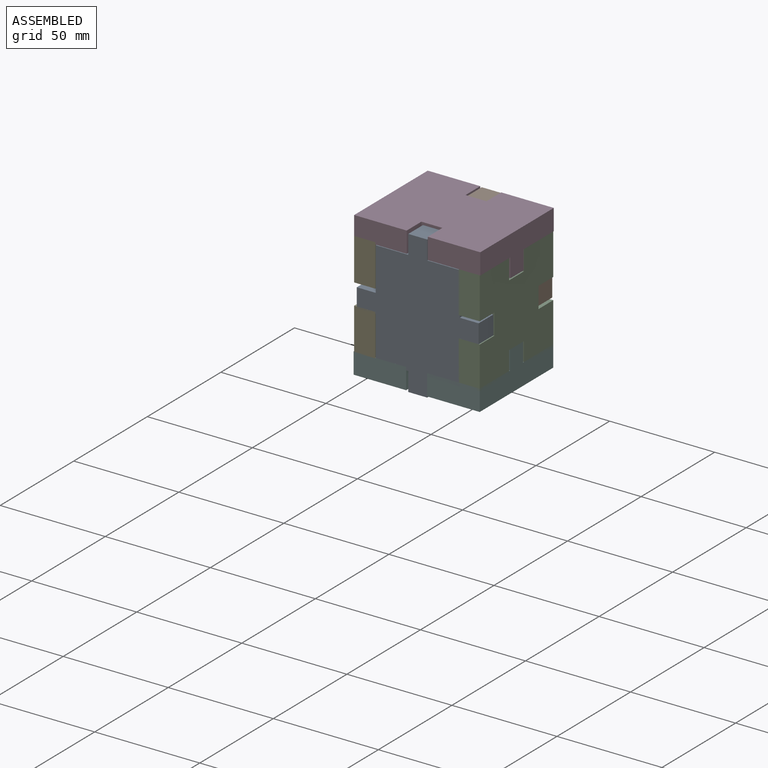
[diagram: assembled view]
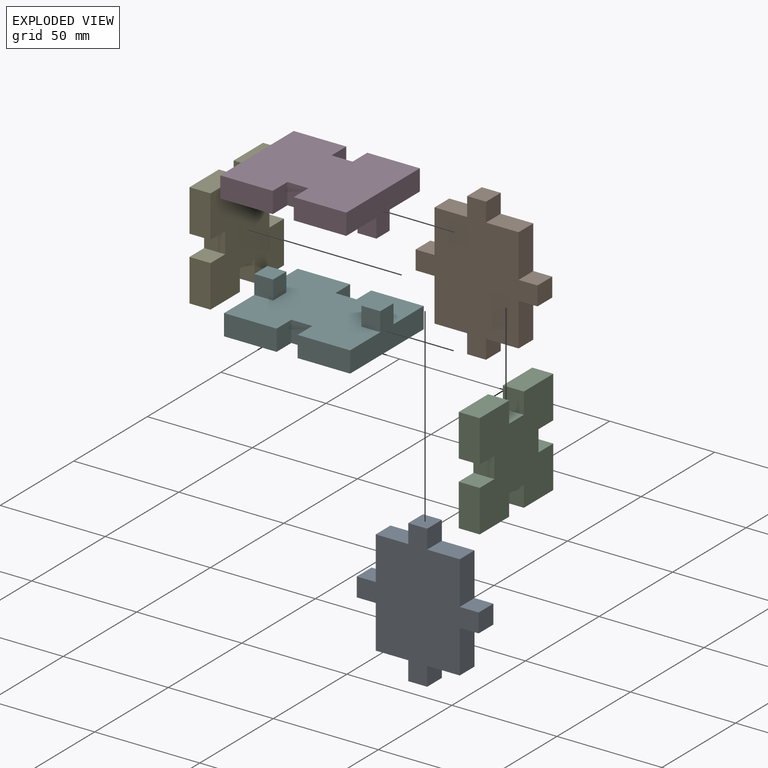
[diagram: exploded view]
GUIDED TOUR — MATED ASSEMBLY (Onshape document 5909404778b4407dcc8a168a, AutoMate assembly 5909404778b4407dcc8a168a_50c21cffb9663e688148c980_401f886c6cd79d30adbaacdc_default)

This assembly has 6 components, labeled P0..P5 below (a component is one placed occurrence of a part; the same part can appear more than once), held together by 3 mates. A mate is a constraint between two components; its type names the relative motion it leaves free:
  FASTENED — locks the two components together rigidly (no relative motion).
Axis/direction vectors are unit vectors and 'through' points are millimeter coordinates, both in the assembly's world frame.

MATES
  1. FASTENED "Fastened 2": P1 <-> P2, direction (0.000, 0.000, 1.000) through (4.25, 100.70, -35.21) mm
  2. FASTENED "Fastened 9": P1 <-> P5, direction (1.000, 0.000, 0.000) through (-15.75, 100.70, -69.21) mm
  3. FASTENED "Fastened 3": P0 <-> P2, direction (0.000, 0.000, -1.000) through (4.25, 60.70, -45.21) mm

ASSEMBLY ORDER
  1. P3 — the base component [order heuristic]
  2. P2 — core [order heuristic]
  3. P4 — core [order heuristic]
  4. P5 — core [order heuristic]
  5. P0 [order verified]
  6. P1 [order verified]
Order-tag legend:
  [order verified] — this step's position reverses a verified removal order: the component was checked to insert without passing through the ones already placed.
  [order heuristic] — the first 4 components form the assembly's core: parts whose collision-free extraction could not be verified, listed in mate-graph order.

Of the 6 components, 6 carry the full construction recipe — the FeatureScript program that regenerates the part's solid from scratch; the rest are supplied as boundary geometry only.
Each toured component is shown spotlighted twice — in the assembled view, then in the exploded view, where a leader line traces a displaced component back to its assembled socket (saturated green if recipe-attached, orange if geometry-only; every other component desaturated gray) — followed by its recipe or geometry summary and the mates that hold it.
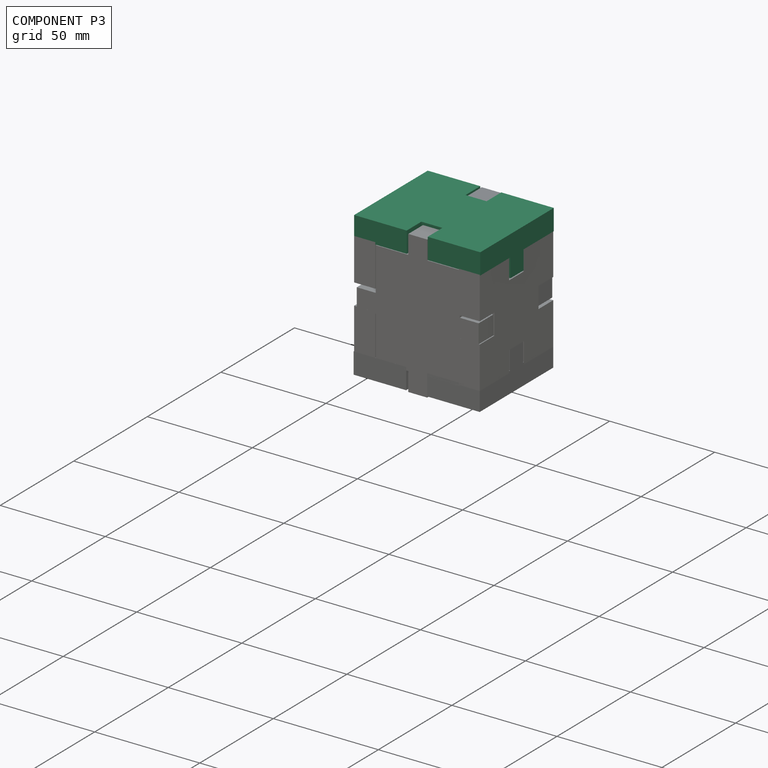
[diagram: component P3 — assembled]
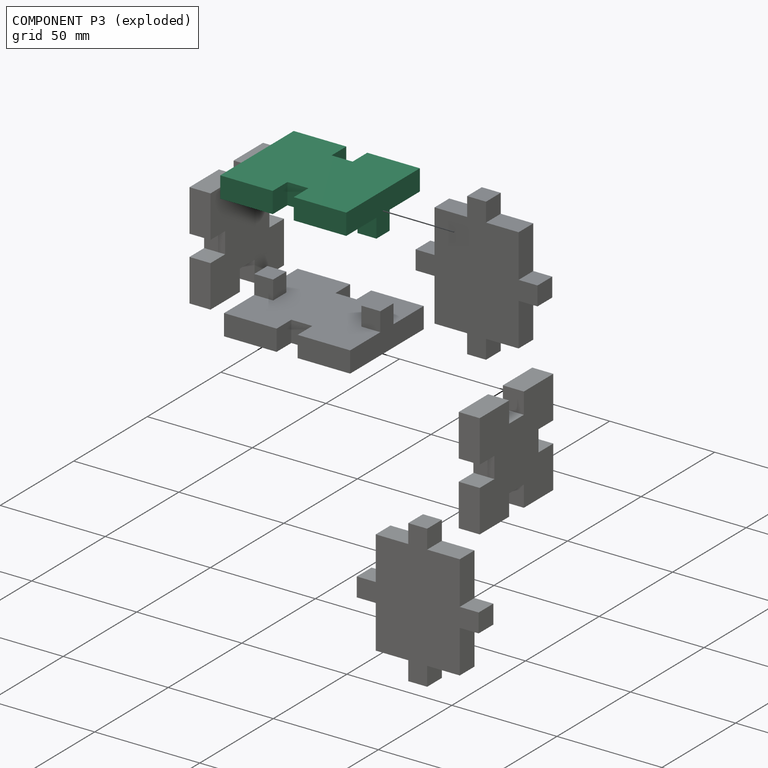
[diagram: component P3 — exploded]
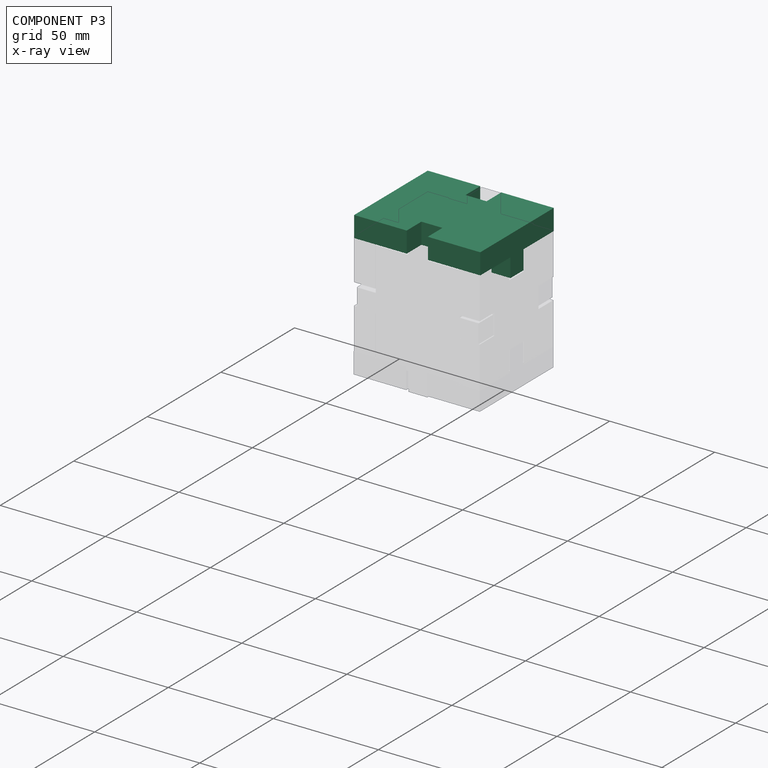
[diagram: component P3 — x-ray view]
COMPONENT P3 — recipe-attached (CADFS 00135327, mesh-verified: the recipe's output STEP matches this component's geometry to below the mesh-comparison resolution (tessellation chordal tolerance ~0.121 mm)).
Held by: no mates (free).
Construction recipe (FeatureScript — the CAD program that rebuilds this solid; sketch coordinates are in the units given by the * unit suffixes, e.g. mm):

FeatureScript 1511;
import(path : "onshape/std/geometry.fs", version : "1511.0");
import(path : "onshape/std/common.fs", version : "1511.0");
const mm = millimeter;
const VERTEX = EntityType.VERTEX;
const EDGE = EntityType.EDGE;
const FACE = EntityType.FACE;
const BODY = EntityType.BODY;
function v(x, y){return vector(x, y);}
function OD(order){return orderDisambiguation(order);}
function OSD(set){return originalSetDisambiguation(set);}
function TD(topology){return topologyDisambiguation(topology);}
function TDD(query){return trueDependencyDisambiguation(query);}
function sQuery(a, b, c) {return sketchEntityQuery(a, b, c);}

annotation { "Feature Type Name" : "Feature", "Feature Type Description" : "" }
export const myFeature = defineFeature(function(context is Context, id is Id, definition is map)
    precondition{}
    {
        {
            var Q0;
            Q0=qCreatedBy(makeId("Top.planeOp"),FACE);
            var sketch = newSketch(context, id + "F0", { "sketchPlane" : qUnion([Q0])});
            skLineSegment(sketch, "E0.bottom", {"start": v(80.72, 58.96) * mm, "end": v(55.72, 58.96) * mm});
            skLineSegment(sketch, "E0.top", {"start": v(80.72, 8.96) * mm, "end": v(55.72, 8.96) * mm});
            skLineSegment(sketch, "E0.left", {"start": v(80.72, 58.96) * mm, "end": v(80.72, 8.96) * mm});
            skLineSegment(sketch, "E0.right", {"start": v(20.72, 58.96) * mm, "end": v(20.72, 8.96) * mm});
            skLineSegment(sketch, "E1.top", {"start": v(55.72, 48.96) * mm, "end": v(45.72, 48.96) * mm});
            skLineSegment(sketch, "E1.left", {"start": v(55.72, 58.96) * mm, "end": v(55.72, 48.96) * mm});
            skLineSegment(sketch, "E1.right", {"start": v(45.72, 58.96) * mm, "end": v(45.72, 48.96) * mm});
            skLineSegment(sketch, "E2.top", {"start": v(55.72, 18.96) * mm, "end": v(45.72, 18.96) * mm});
            skLineSegment(sketch, "E2.left", {"start": v(55.72, 8.96) * mm, "end": v(55.72, 18.96) * mm});
            skLineSegment(sketch, "E2.right", {"start": v(45.72, 8.96) * mm, "end": v(45.72, 18.96) * mm});
            skLineSegment(sketch, "E3.trimOffspring", {"start": v(45.72, 8.96) * mm, "end": v(20.72, 8.96) * mm});
            skLineSegment(sketch, "E4.trimOffspring", {"start": v(45.72, 58.96) * mm, "end": v(20.72, 58.96) * mm});
            skSolve(sketch);
        }
        {
            var Q0;
            Q0=makeQuery(id+"F0.imprint","IMPRINT",FACE,{"disambiguationData":[TD([[makeQuery(id+"F0.imprint","IMPRINT",EDGE,{"derivedFrom":sQuery(id+"F0.wireOp",EDGE,"E0.bottom")}),1.0]])]});
            extrude(context, id + "F1", {"entities" : qUnion([Q0]), "depth" : 10 * mm});
        }
        {
            var Q0;
            Q0=makeQuery(id+"F0.imprint","IMPRINT",FACE,{"disambiguationData":[TD([[makeQuery(id+"F0.imprint","IMPRINT",EDGE,{"derivedFrom":sQuery(id+"F0.wireOp",EDGE,"E0.bottom")}),1.0]])]});
            var sketch = newSketch(context, id + "F2", { "sketchPlane" : qUnion([Q0])});
            skLineSegment(sketch, "E5.right", {"start": v(29.72, 38.46) * mm, "end": v(29.72, 29.46) * mm});
            skLineSegment(sketch, "E6", {"start": v(29.72, 29.46) * mm, "end": v(20.72, 29.46) * mm});
            skLineSegment(sketch, "E7", {"start": v(29.72, 38.46) * mm, "end": v(20.72, 38.46) * mm});
            skLineSegment(sketch, "E8", {"start": v(50.72, 18.96) * mm, "end": v(50.72, 48.96) * mm, "construction": true});
            skLineSegment(sketch, "E9.MirrorCS", {"start": v(71.72, 29.46) * mm, "end": v(80.72, 29.46) * mm});
            skLineSegment(sketch, "E10.MirrorCS", {"start": v(71.72, 38.46) * mm, "end": v(80.72, 38.46) * mm});
            skLineSegment(sketch, "E11.MirrorCS", {"start": v(71.72, 38.46) * mm, "end": v(71.72, 29.46) * mm});
            skPoint(sketch, "E12.orphan", {"position": v(50.72, 55.6) * mm});
            skLineSegment(sketch, "E13.0", {"start": v(55.72, 48.96) * mm, "end": v(45.72, 48.96) * mm});
            skPoint(sketch, "E14.orphan", {"position": v(50.72, 37.28) * mm});
            skLineSegment(sketch, "E15.0", {"start": v(80.72, 58.96) * mm, "end": v(80.72, 8.96) * mm});
            skLineSegment(sketch, "E16.0", {"start": v(20.72, 58.96) * mm, "end": v(20.72, 8.96) * mm});
            skSolve(sketch);
        }
        {
            var Q0;
            Q0 = qSketchRegion(id + "F2", true);
            extrude(context, id + "F3", {"entities" : qUnion([Q0]), "operationType" : NewBodyOperationType.ADD, "oppositeDirection" : true, "depth" : 9 * mm});
        }
    });
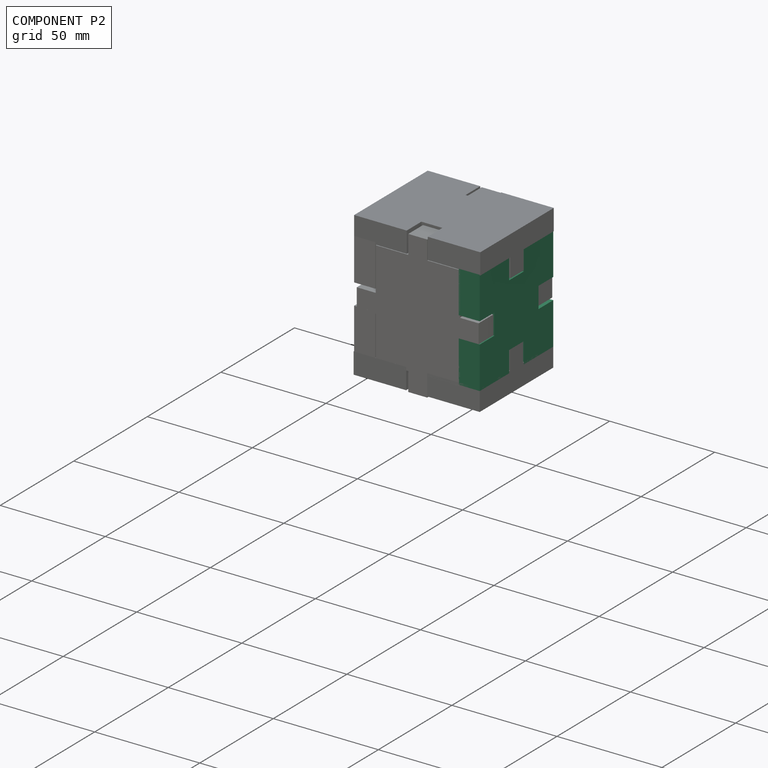
[diagram: component P2 — assembled]
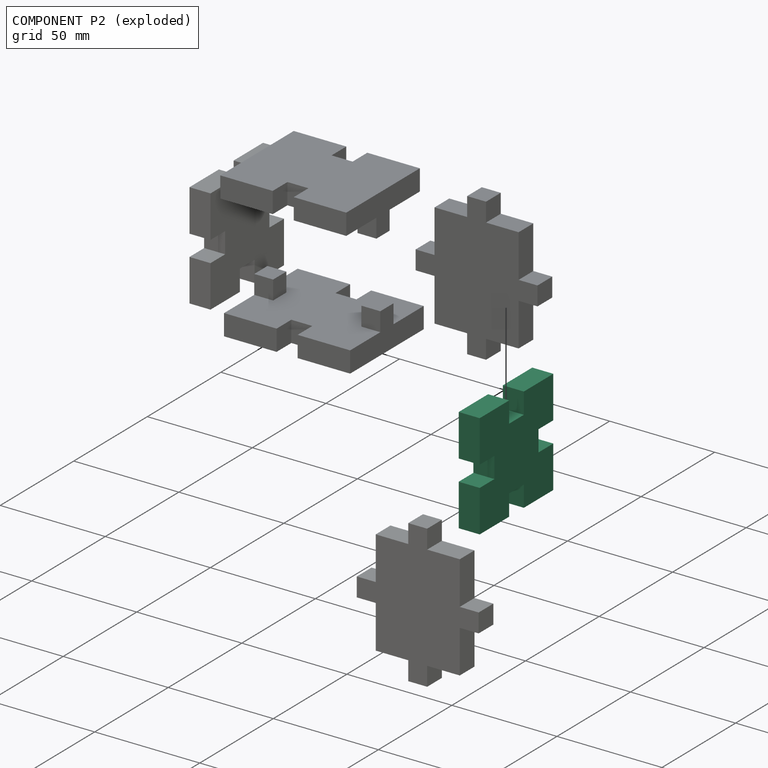
[diagram: component P2 — exploded]
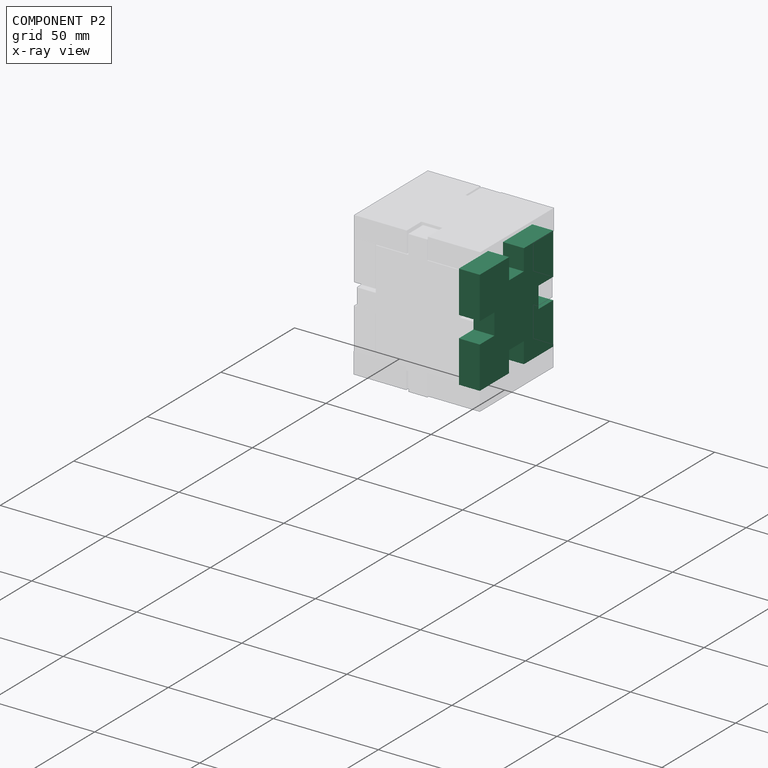
[diagram: component P2 — x-ray view]
COMPONENT P2 — recipe-attached (CADFS 00135326, mesh-verified: the recipe's output STEP matches this component's geometry to below the mesh-comparison resolution (tessellation chordal tolerance ~0.107 mm)).
Held by: FASTENED mate "Fastened 2" to P1; FASTENED mate "Fastened 3" to P0.
Construction recipe (FeatureScript — the CAD program that rebuilds this solid; sketch coordinates are in the units given by the * unit suffixes, e.g. mm):

FeatureScript 1511;
import(path : "onshape/std/geometry.fs", version : "1511.0");
import(path : "onshape/std/common.fs", version : "1511.0");
const mm = millimeter;
const VERTEX = EntityType.VERTEX;
const EDGE = EntityType.EDGE;
const FACE = EntityType.FACE;
const BODY = EntityType.BODY;
function v(x, y){return vector(x, y);}
function OD(order){return orderDisambiguation(order);}
function OSD(set){return originalSetDisambiguation(set);}
function TD(topology){return topologyDisambiguation(topology);}
function TDD(query){return trueDependencyDisambiguation(query);}
function sQuery(a, b, c) {return sketchEntityQuery(a, b, c);}

annotation { "Feature Type Name" : "Feature", "Feature Type Description" : "" }
export const myFeature = defineFeature(function(context is Context, id is Id, definition is map)
    precondition{}
    {
        {
            var Q0;
            Q0=qCreatedBy(makeId("Right.planeOp"),FACE);
            var sketch = newSketch(context, id + "F0", { "sketchPlane" : qUnion([Q0])});
            skLineSegment(sketch, "E0.bottom", {"start": v(-50, 50) * mm, "end": v(0, 50) * mm});
            skLineSegment(sketch, "E0.top", {"start": v(-50, 0) * mm, "end": v(0, 0) * mm});
            skLineSegment(sketch, "E0.left", {"start": v(-50, 50) * mm, "end": v(-50, 0) * mm});
            skLineSegment(sketch, "E0.right", {"start": v(0, 50) * mm, "end": v(0, 0) * mm});
            skLineSegment(sketch, "E1.bottom", {"start": v(-30, 50) * mm, "end": v(-20, 50) * mm});
            skLineSegment(sketch, "E1.top", {"start": v(-30, 40) * mm, "end": v(-20, 40) * mm});
            skLineSegment(sketch, "E1.left", {"start": v(-30, 50) * mm, "end": v(-30, 40) * mm});
            skLineSegment(sketch, "E1.right", {"start": v(-20, 50) * mm, "end": v(-20, 40) * mm});
            skLineSegment(sketch, "E2.bottom", {"start": v(0, 30) * mm, "end": v(-10, 30) * mm});
            skLineSegment(sketch, "E2.top", {"start": v(0, 20) * mm, "end": v(-10, 20) * mm});
            skLineSegment(sketch, "E2.left", {"start": v(0, 30) * mm, "end": v(0, 20) * mm});
            skLineSegment(sketch, "E2.right", {"start": v(-10, 30) * mm, "end": v(-10, 20) * mm});
            skLineSegment(sketch, "E3.bottom", {"start": v(-30, 0) * mm, "end": v(-20, 0) * mm});
            skLineSegment(sketch, "E3.top", {"start": v(-30, 10) * mm, "end": v(-20, 10) * mm});
            skLineSegment(sketch, "E3.left", {"start": v(-30, 0) * mm, "end": v(-30, 10) * mm});
            skLineSegment(sketch, "E3.right", {"start": v(-20, 0) * mm, "end": v(-20, 10) * mm});
            skLineSegment(sketch, "E4.bottom", {"start": v(-50, 30) * mm, "end": v(-40, 30) * mm});
            skLineSegment(sketch, "E4.top", {"start": v(-50, 20) * mm, "end": v(-40, 20) * mm});
            skLineSegment(sketch, "E4.left", {"start": v(-50, 30) * mm, "end": v(-50, 20) * mm});
            skLineSegment(sketch, "E4.right", {"start": v(-40, 30) * mm, "end": v(-40, 20) * mm});
            skSolve(sketch);
        }
        {
            var Q0;
            Q0=makeQuery(id+"F0.imprint","IMPRINT",FACE,{"disambiguationData":[TD([[makeQuery(id+"F0.imprint","IMPRINT",EDGE,{"derivedFrom":sQuery(id+"F0.wireOp",EDGE,"E1.top")}),-1.0]])]});
            extrude(context, id + "F1", {"entities" : qUnion([Q0]), "depth" : 10 * mm});
        }
    });
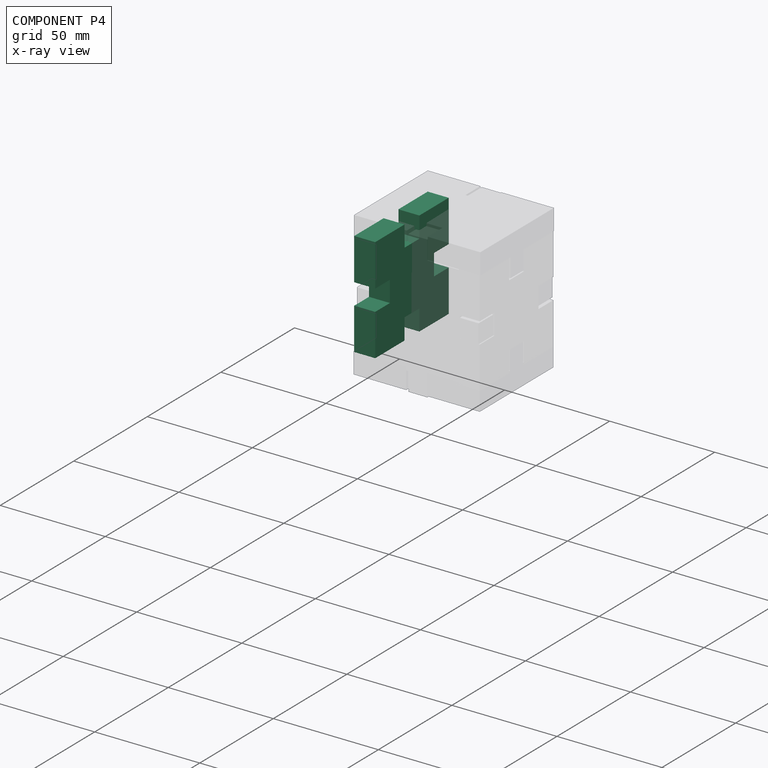
[diagram: component P4 — x-ray view]
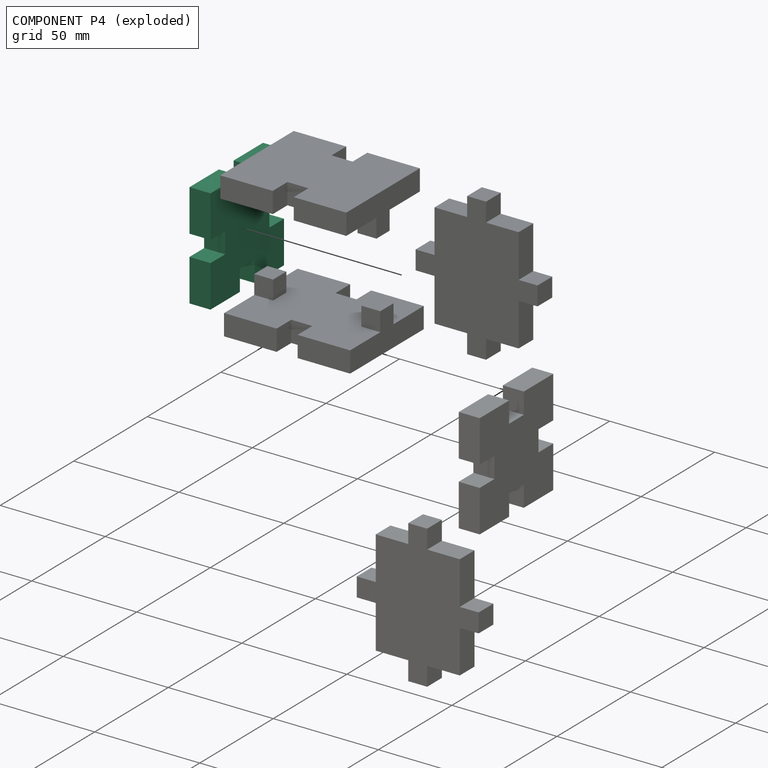
[diagram: component P4 — exploded]
COMPONENT P4 — same part as P2 (CADFS 00135326); its construction recipe is shown at P2.
Held by: no mates (free).
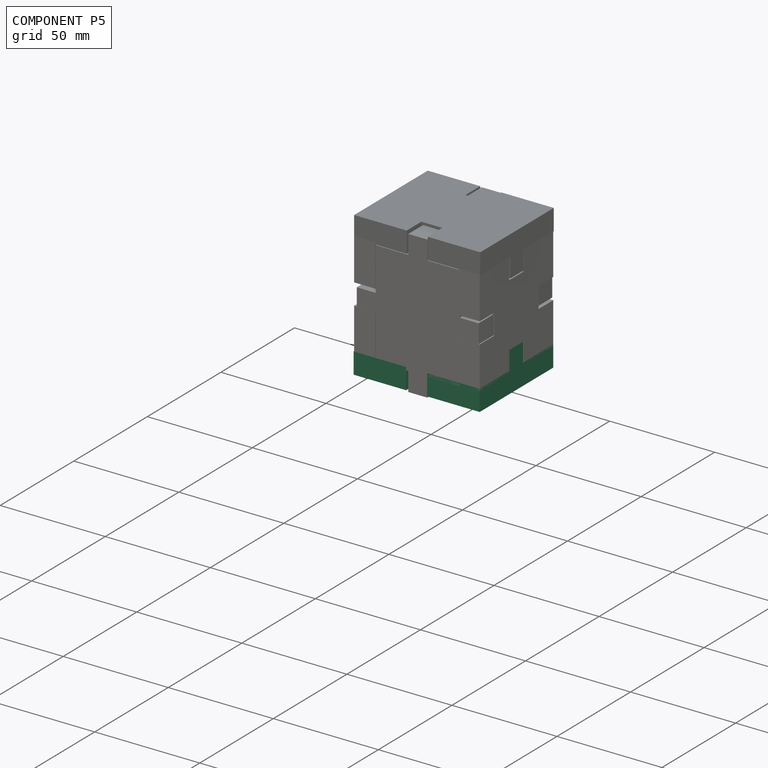
[diagram: component P5 — assembled]
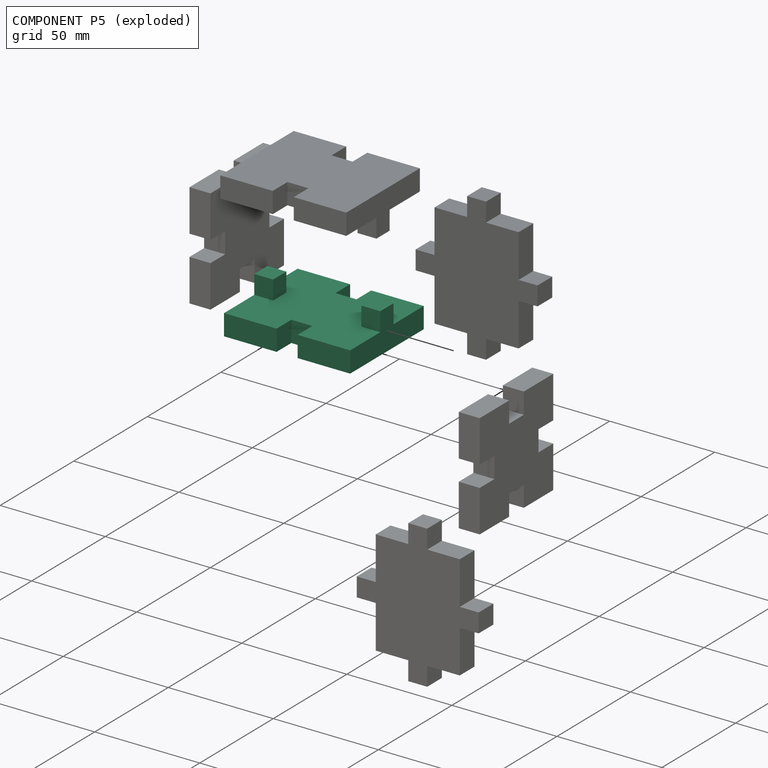
[diagram: component P5 — exploded]
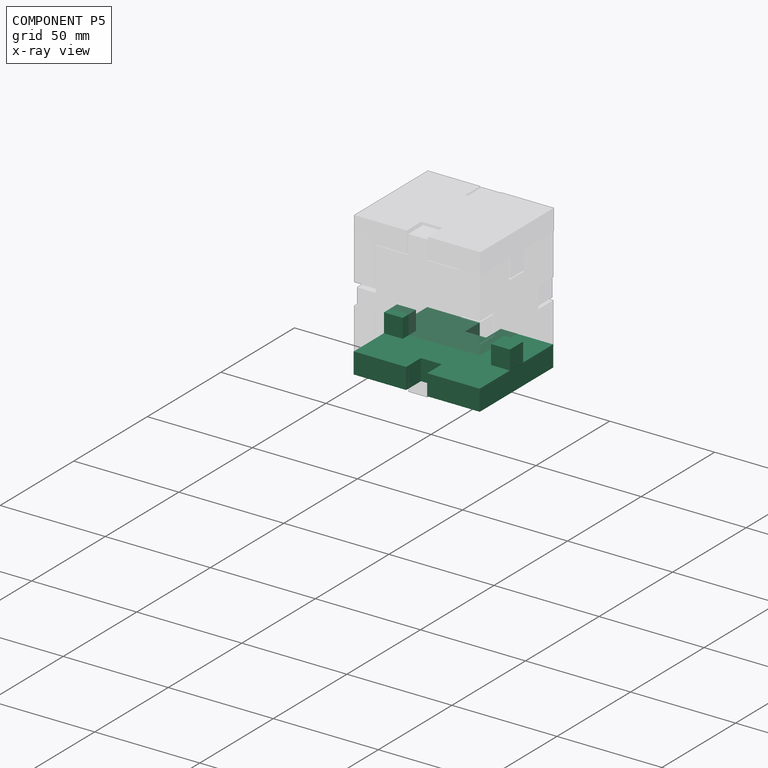
[diagram: component P5 — x-ray view]
COMPONENT P5 — same part as P3 (CADFS 00135327); its construction recipe is shown at P3.
Held by: FASTENED mate "Fastened 9" to P1.
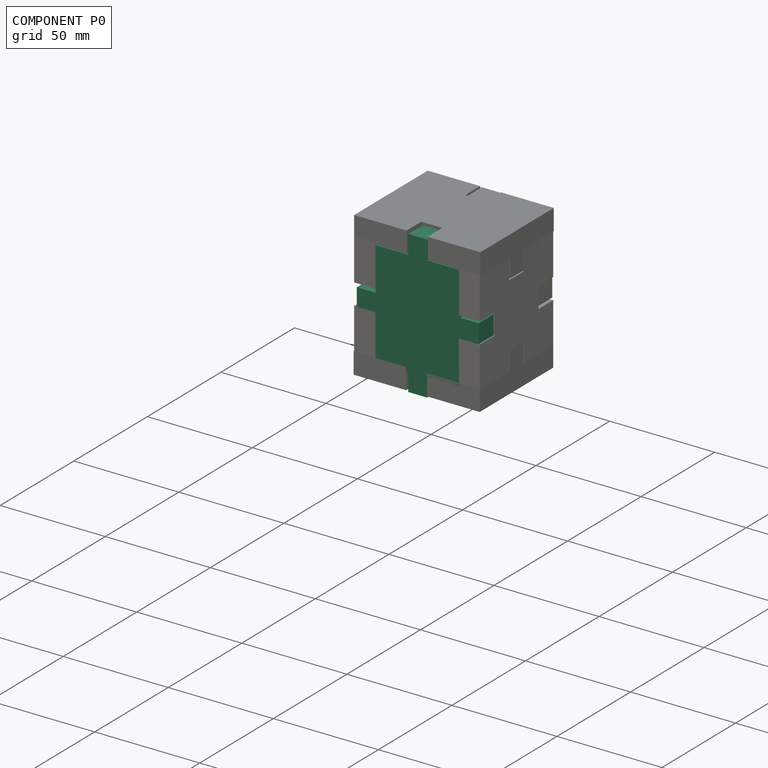
[diagram: component P0 — assembled]
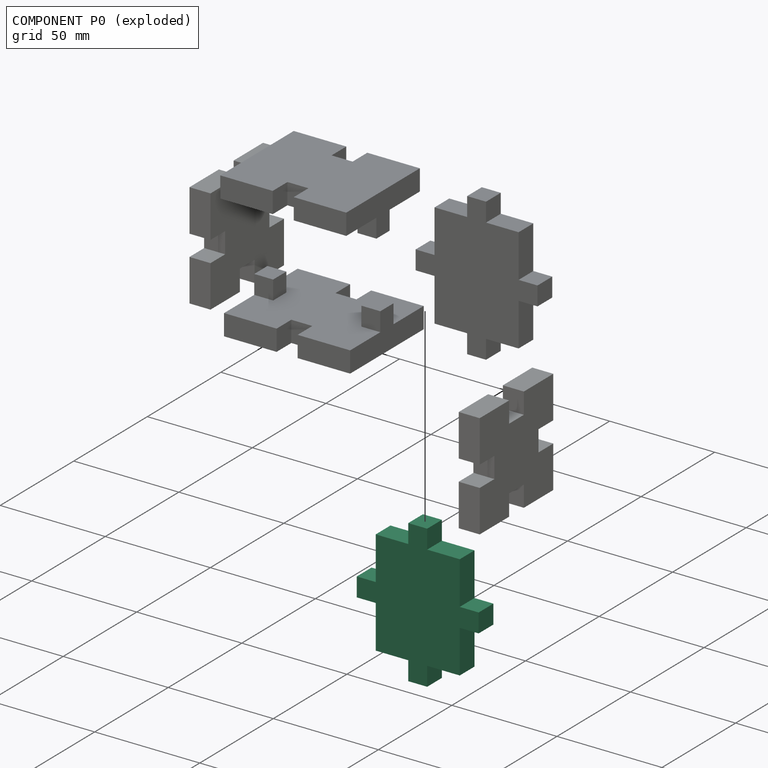
[diagram: component P0 — exploded]
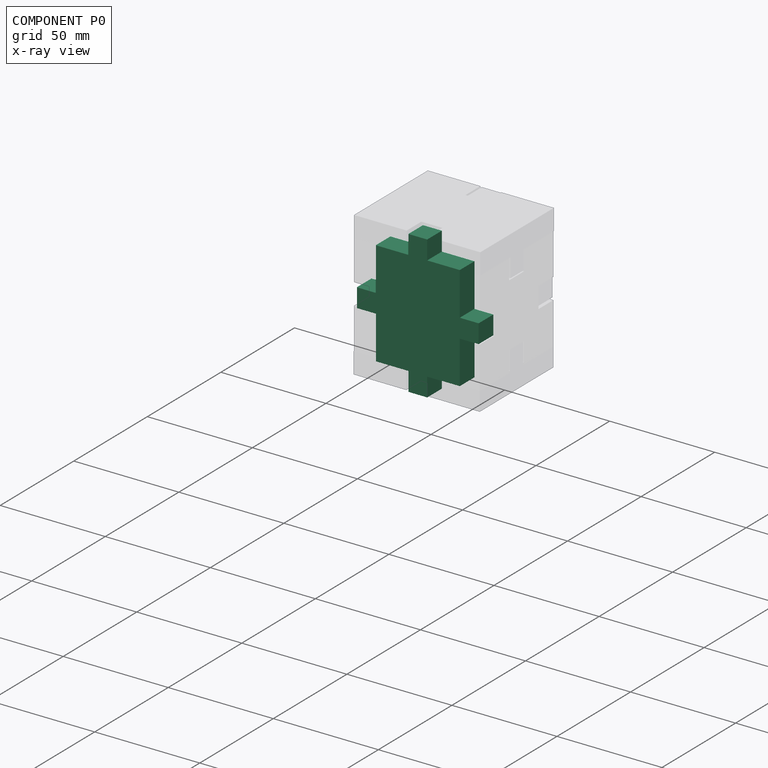
[diagram: component P0 — x-ray view]
COMPONENT P0 — recipe-attached (CADFS 00135325, mesh-verified: the recipe's output STEP matches this component's geometry to below the mesh-comparison resolution (tessellation chordal tolerance ~0.135 mm)).
Held by: FASTENED mate "Fastened 3" to P2.
Construction recipe (FeatureScript — the CAD program that rebuilds this solid; sketch coordinates are in the units given by the * unit suffixes, e.g. mm):

FeatureScript 1511;
import(path : "onshape/std/geometry.fs", version : "1511.0");
import(path : "onshape/std/common.fs", version : "1511.0");
const mm = millimeter;
const VERTEX = EntityType.VERTEX;
const EDGE = EntityType.EDGE;
const FACE = EntityType.FACE;
const BODY = EntityType.BODY;
function v(x, y){return vector(x, y);}
function OD(order){return orderDisambiguation(order);}
function OSD(set){return originalSetDisambiguation(set);}
function TD(topology){return topologyDisambiguation(topology);}
function TDD(query){return trueDependencyDisambiguation(query);}
function sQuery(a, b, c) {return sketchEntityQuery(a, b, c);}

annotation { "Feature Type Name" : "Feature", "Feature Type Description" : "" }
export const myFeature = defineFeature(function(context is Context, id is Id, definition is map)
    precondition{}
    {
        {
            var Q0;
            Q0=qCreatedBy(makeId("Front.planeOp"),FACE);
            var sketch = newSketch(context, id + "F0", { "sketchPlane" : qUnion([Q0])});
            skLineSegment(sketch, "E0.bottom", {"start": v(-36.69, 50) * mm, "end": v(3.31, 50) * mm});
            skLineSegment(sketch, "E0.top", {"start": v(-36.69, 0) * mm, "end": v(3.31, 0) * mm});
            skLineSegment(sketch, "E0.left", {"start": v(-36.69, 50) * mm, "end": v(-36.69, 0) * mm});
            skLineSegment(sketch, "E0.right", {"start": v(3.31, 50) * mm, "end": v(3.31, 0) * mm});
            skLineSegment(sketch, "E1.left", {"start": v(-36.69, 50) * mm, "end": v(-36.69, 50) * mm});
            skLineSegment(sketch, "E1.right", {"start": v(3.31, 50) * mm, "end": v(3.31, 50) * mm});
            skLineSegment(sketch, "E2.bottom", {"start": v(3.31, 50) * mm, "end": v(-36.69, 50) * mm});
            skLineSegment(sketch, "E2.top", {"start": v(3.31, 50) * mm, "end": v(-36.69, 50) * mm});
            skLineSegment(sketch, "E3.bottom", {"start": v(3.31, 29.5) * mm, "end": v(12.31, 29.5) * mm});
            skLineSegment(sketch, "E3.top", {"start": v(3.31, 20.5) * mm, "end": v(12.31, 20.5) * mm});
            skLineSegment(sketch, "E3.left", {"start": v(3.31, 29.5) * mm, "end": v(3.31, 20.5) * mm});
            skLineSegment(sketch, "E3.right", {"start": v(12.31, 29.5) * mm, "end": v(12.31, 20.5) * mm});
            skLineSegment(sketch, "E4.bottom", {"start": v(-21.19, 0) * mm, "end": v(-12.19, 0) * mm});
            skLineSegment(sketch, "E4.top", {"start": v(-21.19, -9) * mm, "end": v(-12.19, -9) * mm});
            skLineSegment(sketch, "E4.left", {"start": v(-21.19, 0) * mm, "end": v(-21.19, -9) * mm});
            skLineSegment(sketch, "E4.right", {"start": v(-12.19, 0) * mm, "end": v(-12.19, -9) * mm});
            skLineSegment(sketch, "E5", {"start": v(-16.69, 50) * mm, "end": v(-16.69, -39.94) * mm, "construction": true});
            skLineSegment(sketch, "E6.MirrorCS", {"start": v(-36.69, 29.5) * mm, "end": v(-45.69, 29.5) * mm});
            skLineSegment(sketch, "E7.MirrorCS", {"start": v(-45.69, 29.5) * mm, "end": v(-45.69, 20.5) * mm});
            skLineSegment(sketch, "E8.MirrorCS", {"start": v(-36.69, 20.5) * mm, "end": v(-45.69, 20.5) * mm});
            skLineSegment(sketch, "E9", {"start": v(-36.69, 25) * mm, "end": v(-1.13, 25) * mm, "construction": true});
            skPoint(sketch, "E9.endSnap0", {"position": v(3.31, 25) * mm});
            skLineSegment(sketch, "E10.MirrorCS", {"start": v(-21.19, 50) * mm, "end": v(-21.19, 59) * mm});
            skLineSegment(sketch, "E11.MirrorCS", {"start": v(-21.19, 59) * mm, "end": v(-12.19, 59) * mm});
            skLineSegment(sketch, "E12.MirrorCS", {"start": v(-12.19, 50) * mm, "end": v(-12.19, 59) * mm});
            skSolve(sketch);
        }
        {
            var Q0;
            Q0 = qSketchRegion(id + "F0", true);
            extrude(context, id + "F1", {"entities" : qUnion([Q0]), "depth" : 10 * mm});
        }
    });
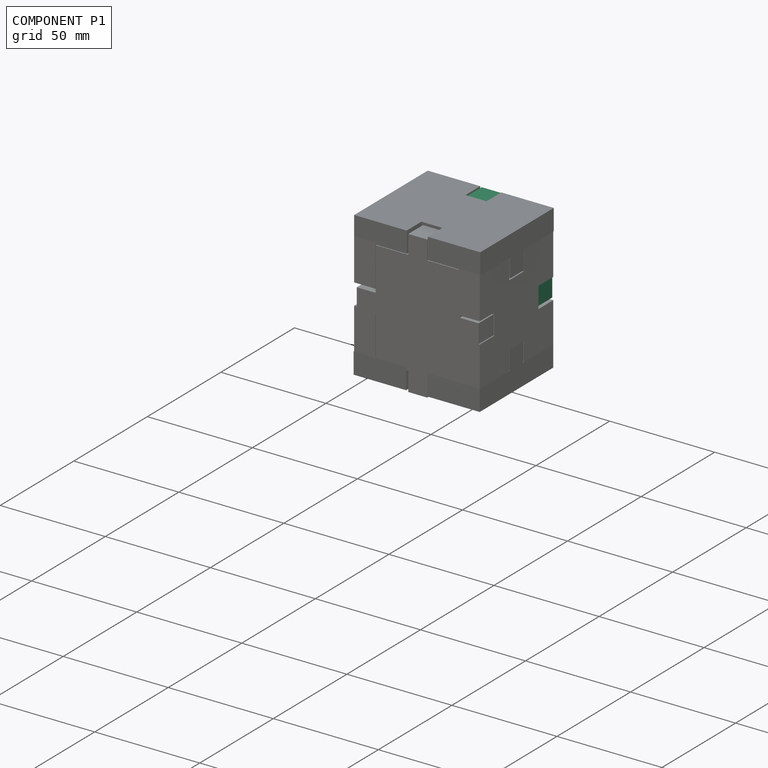
[diagram: component P1 — assembled]
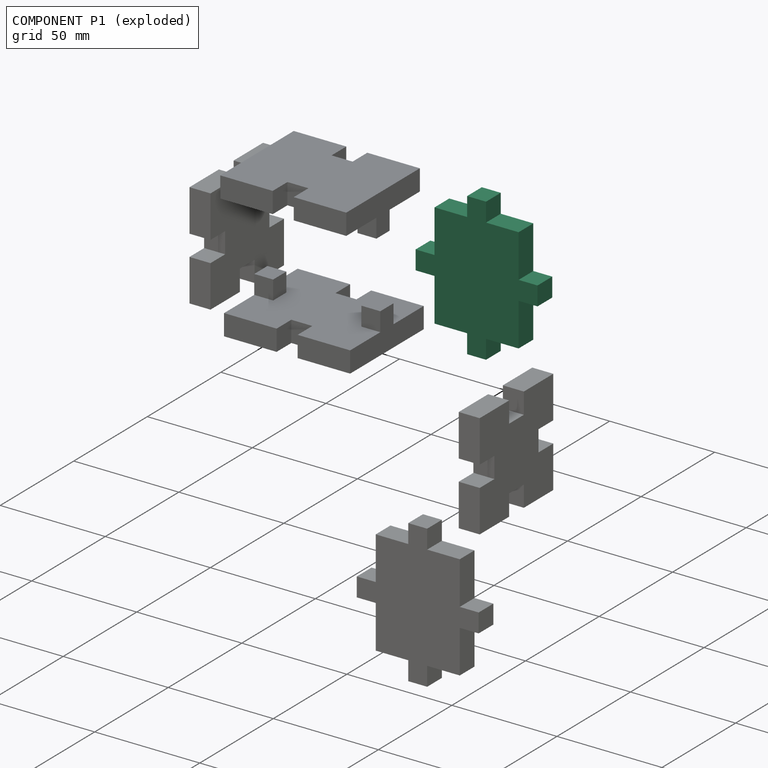
[diagram: component P1 — exploded]
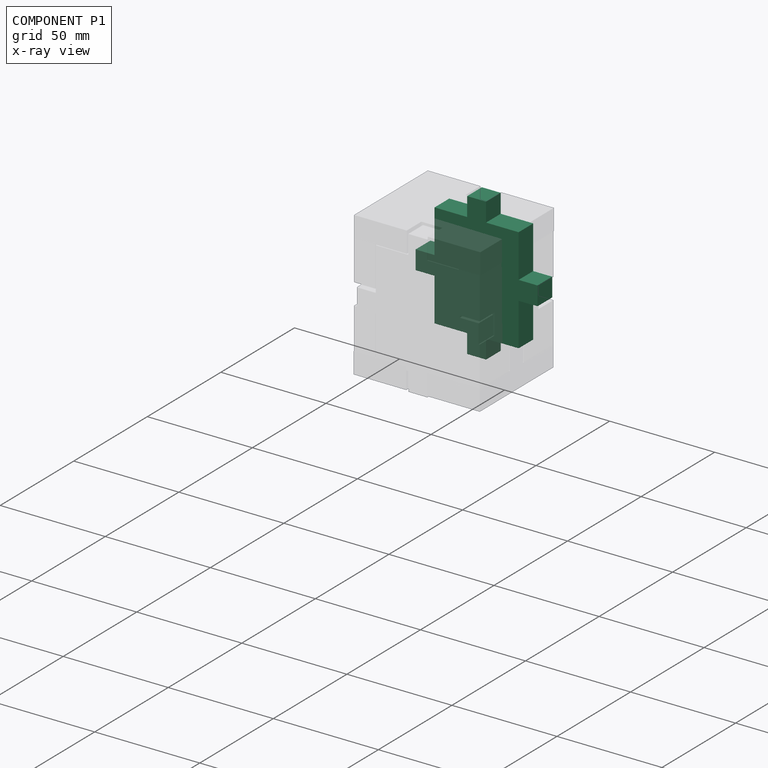
[diagram: component P1 — x-ray view]
COMPONENT P1 — same part as P0 (CADFS 00135325); its construction recipe is shown at P0.
Held by: FASTENED mate "Fastened 2" to P2; FASTENED mate "Fastened 9" to P5.
PROVENANCE & LICENSES
Assembly (occurrences, transforms, mates, per-part STEP geometry): AutoMate dataset, Zenodo record 7776208, CC0.
Construction recipes: CADFS (HuggingFace VladPyatov/CADFS, CC-BY-4.0, layered over the ABC dataset), FeatureScript reconstruction programs keyed by ABC model id.
Join: ABC meta listings map ABC model id -> Onshape documentId; within a shared document, parts are matched by geometric signature (bounding-box dims + volume at 0.1% relative tolerance, exact B-rep face/solid counts).
Verification: 6 of this assembly's 6 components carry a recipe attachment, and every attachment is mesh-verified: the CADFS STEP and the AutoMate member STEP were compared as meshes in their shared local frame (symmetric sampled-point-to-mesh distance); worst across the 6 attachments: below the mesh-comparison resolution (tessellation chordal tolerance ~0.135 mm) on a 90 mm part.
Renders: orthographic iso camera (az 35 / el 25); the floor grid conveys scale (grid pitch printed in each image; no ruler). In the exploded view each component is displaced by its stored offset vector: the offsets alone carry the explosion direction (mate normal/axis signs are not orientation cues and do not encode it), and separation distances are assigned per mate-chain, not proportionally to assembly-order depth.
